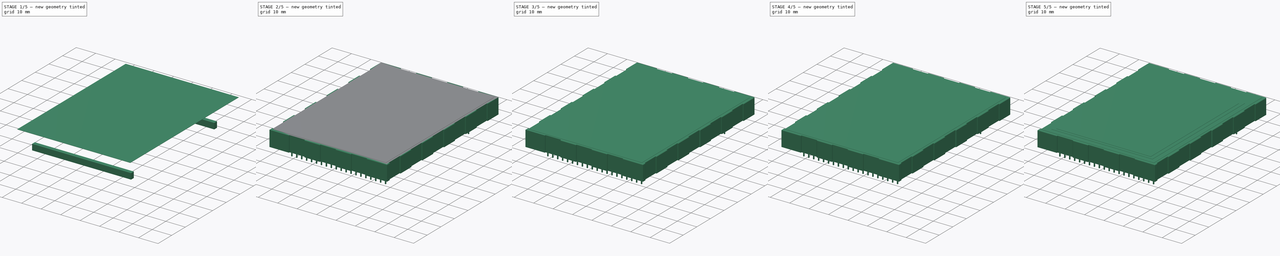
[diagram: build sequence overview — one tinted view per stage of 5, left to right]
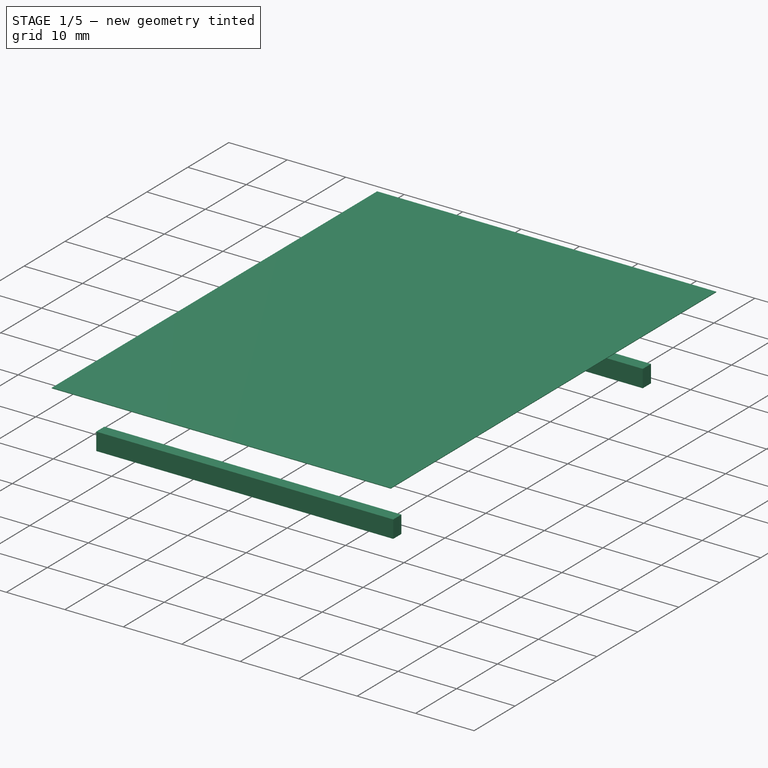
[diagram: stage 1 of 5 — iso view after this stage's code; geometry added in this stage tinted green]
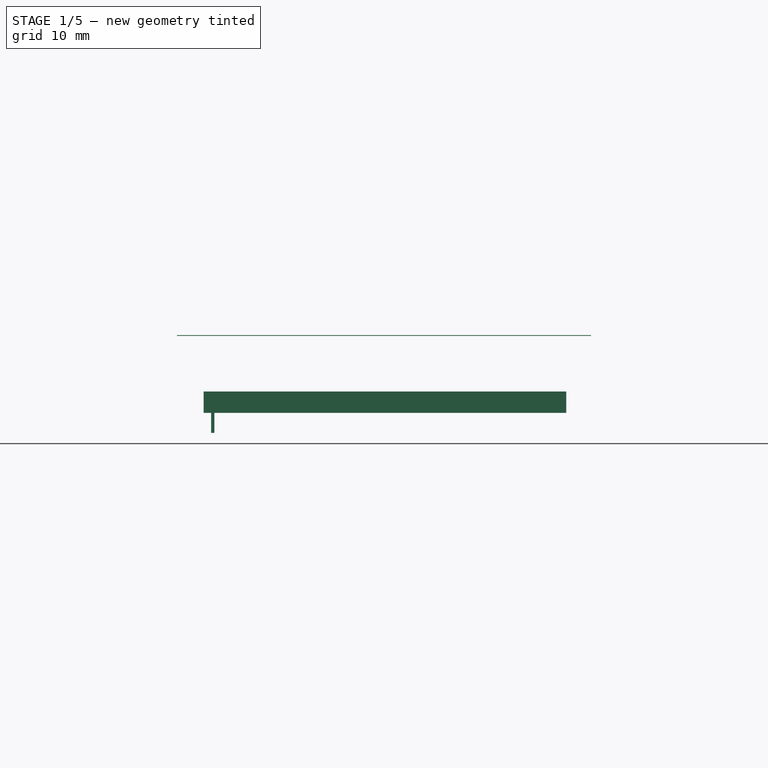
[diagram: stage 1 of 5 — front view after this stage's code; geometry added in this stage tinted green]
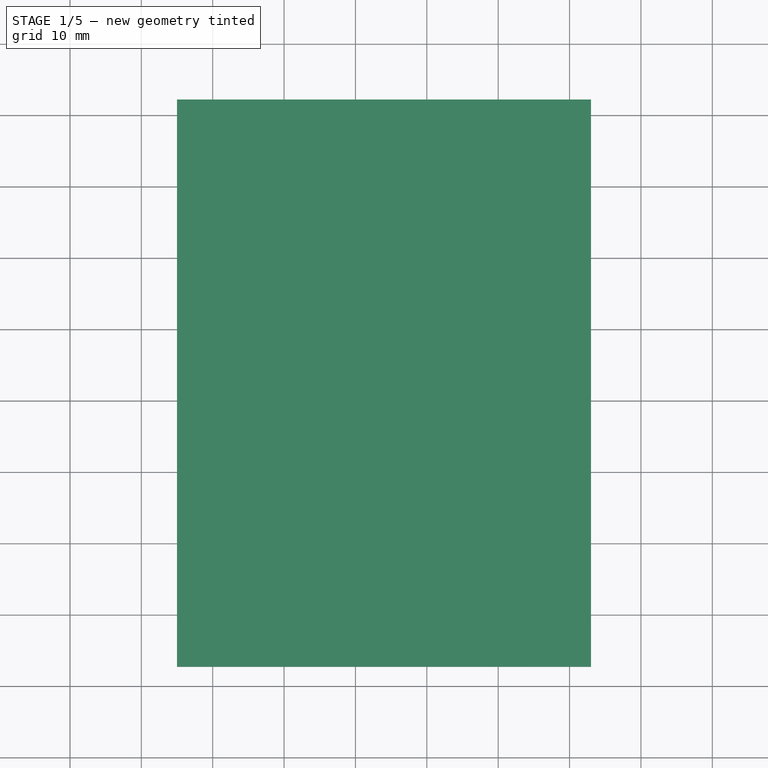
[diagram: stage 1 of 5 — top view after this stage's code; geometry added in this stage tinted green]
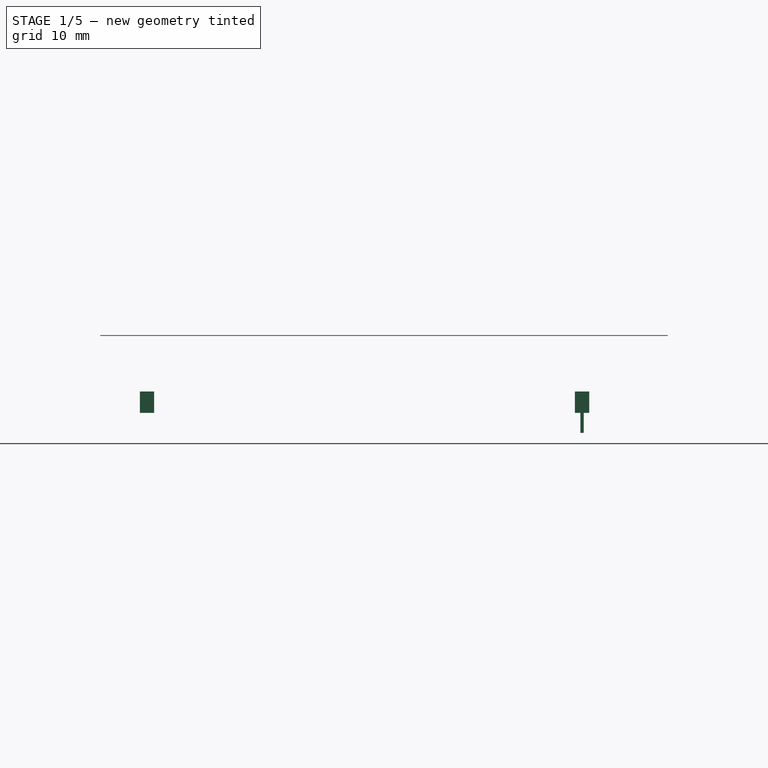
[diagram: stage 1 of 5 — right view after this stage's code; geometry added in this stage tinted green]
FCSTD DOCUMENT  (FreeCAD 0.17R11223 (Git))
Label: EA_eDIPTFT32_3
License: All rights reserved
LicenseURL: http://en.wikipedia.org/wiki/All_rights_reserved
objects: Part::Fillet×8, Part::Box×5, Part::FeaturePython×2, Part::MultiFuse×2, Sketcher::SketchObject×1, PartDesign::Pad×1, PartDesign::Body×1, Part::Cylinder×1
note: 22 computed .brp shape members not serialized (recipe doc carries the construction recipe); baked Part::Feature solids carry a one-line shape summary decoded from their .brp

FEATURE [PartDesign::Body] Body
  Group = -> [Sketch,Pad]
  Origin = -> BodyOrigin
  Placement = pos=(0,0,2.8) rot=(0,0,1;4.71239rad)
  Tip = -> Pad
FEATURE [Part::Box] Box  label="Kub"
  AttacherType = Attacher::AttachEngine3D
  Height = 3
  Length = 50.8
  Placement = pos=(-1.27,-1,0) rot=(0,0,1;0rad)
  Width = 2
FEATURE [Part::Box] Box001  label="Pin"
  AttacherType = Attacher::AttachEngine3D
  Height = 4
  Length = 0.46
  Placement = pos=(-0.23,-0.23,-2.8) rot=(0,0,1;0rad)
  Width = 0.46
FEATURE [Part::FeaturePython] Array001  label="Pinholder"  # Draft array (typed FeaturePython)
  Angle = 360
  ArrayType = 0
  Axis = (0,0,1)
  Base = -> Box
  Center = (0,0,0)
  Fuse = false
  IntervalAxis = (0,0,0)
  IntervalX = (1,0,0)
  IntervalY = (0,-60.96,0)
  IntervalZ = (0,0,0)
  NumberPolar = 1
  NumberX = 1
  NumberY = 2
  NumberZ = 1
FEATURE [Part::Box] Box004  label="DisplayBase"
  AttacherType = Attacher::AttachEngine3D
  Height = 0.1
  Length = 58
  Placement = pos=(-5,-67.5,10.8) rot=(0,0,1;0rad)
  Width = 79.5
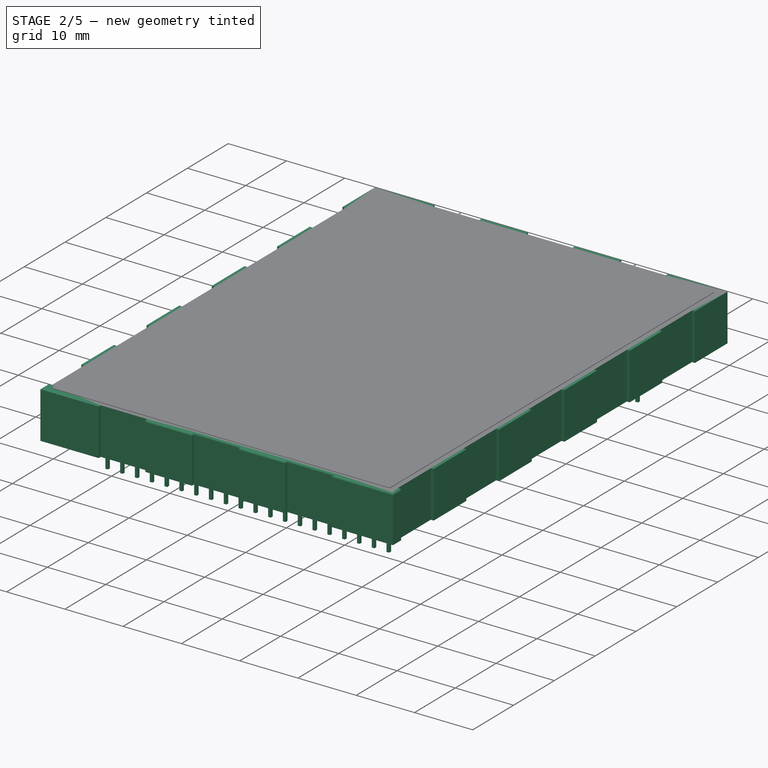
[diagram: stage 2 of 5 — iso view after this stage's code; geometry added in this stage tinted green]
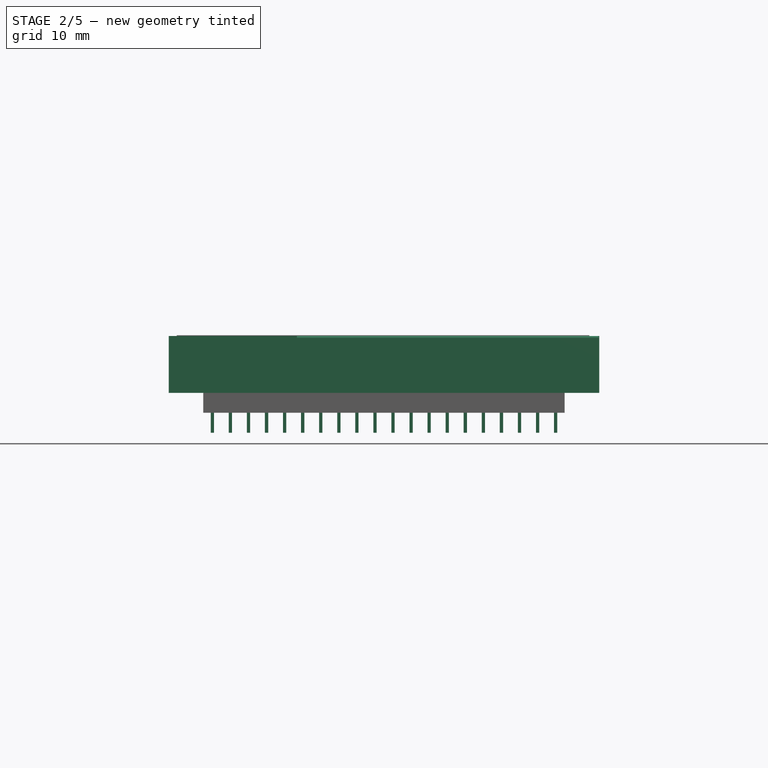
[diagram: stage 2 of 5 — front view after this stage's code; geometry added in this stage tinted green]
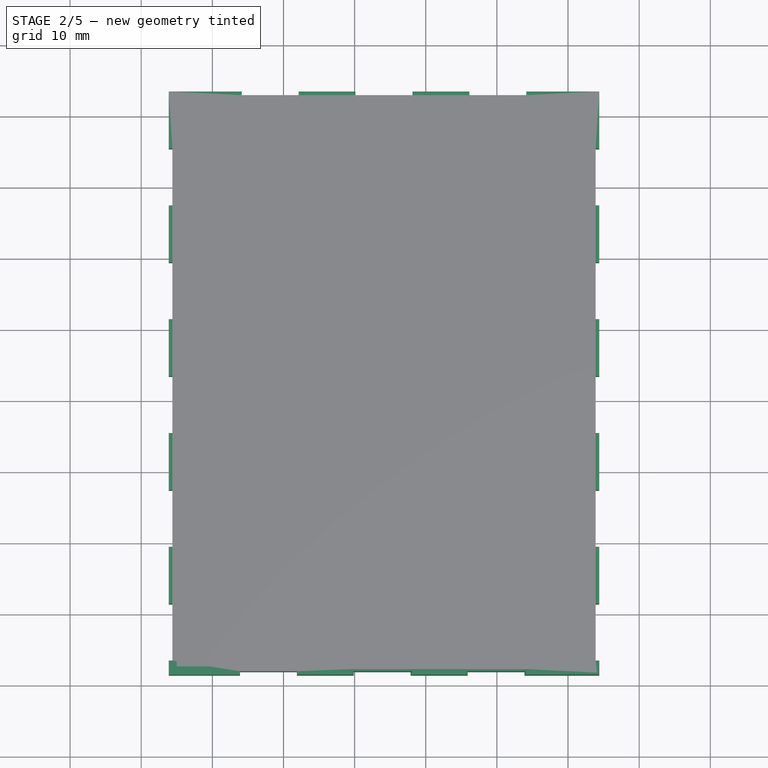
[diagram: stage 2 of 5 — top view after this stage's code; geometry added in this stage tinted green]
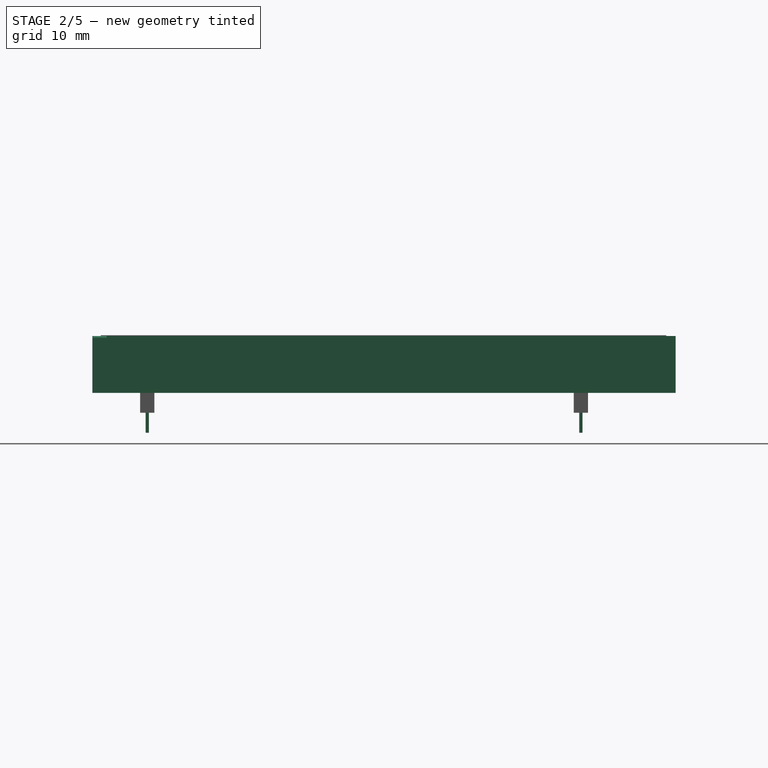
[diagram: stage 2 of 5 — right view after this stage's code; geometry added in this stage tinted green]
FEATURE [Sketcher::SketchObject] Sketch
  MapMode = 5
  Support = -> [XY_Plane]
  sketch-geometry (68):
    g0: LineSegment StartX=-13.32 StartY=54.38 StartZ=0 EndX=-5.32 EndY=54.38 EndZ=0
    g1: LineSegment StartX=-5.32 StartY=54.38 StartZ=0 EndX=-5.32 EndY=53.88 EndZ=0
    g2: LineSegment StartX=-5.32 StartY=53.88 StartZ=0 EndX=2.68 EndY=53.88 EndZ=0
    g3: LineSegment StartX=2.68 StartY=53.88 StartZ=0 EndX=2.68 EndY=54.38 EndZ=0
    g4: LineSegment StartX=2.68 StartY=54.38 StartZ=0 EndX=10.68 EndY=54.38 EndZ=0
    g5: LineSegment StartX=10.68 StartY=54.38 StartZ=0 EndX=10.68 EndY=53.88 EndZ=0
    g6: LineSegment StartX=10.68 StartY=53.88 StartZ=0 EndX=18.68 EndY=53.88 EndZ=0
    g7: LineSegment StartX=18.68 StartY=53.88 StartZ=0 EndX=18.68 EndY=54.38 EndZ=0
    g8: LineSegment StartX=18.68 StartY=54.38 StartZ=0 EndX=26.68 EndY=54.38 EndZ=0
    g9: LineSegment StartX=26.68 StartY=54.38 StartZ=0 EndX=26.68 EndY=53.88 EndZ=0
    g10: LineSegment StartX=26.68 StartY=53.88 StartZ=0 EndX=34.68 EndY=53.88 EndZ=0
    g11: LineSegment StartX=34.68 StartY=53.88 StartZ=0 EndX=34.68 EndY=54.38 EndZ=0
    g12: LineSegment StartX=34.68 StartY=54.38 StartZ=0 EndX=42.68 EndY=54.38 EndZ=0
    g13: LineSegment StartX=42.68 StartY=54.38 StartZ=0 EndX=42.68 EndY=53.88 EndZ=0
    g14: LineSegment StartX=42.68 StartY=53.88 StartZ=0 EndX=50.68 EndY=53.88 EndZ=0
    g15: LineSegment StartX=50.68 StartY=53.88 StartZ=0 EndX=50.68 EndY=54.38 EndZ=0
    g16: LineSegment StartX=50.68 StartY=54.38 StartZ=0 EndX=58.68 EndY=54.38 EndZ=0
    g17: LineSegment StartX=58.68 StartY=54.38 StartZ=0 EndX=58.68 EndY=53.88 EndZ=0
    g18: LineSegment StartX=58.68 StartY=53.88 StartZ=0 EndX=66.68 EndY=53.88 EndZ=0
    g19: LineSegment StartX=66.68 StartY=53.88 StartZ=0 EndX=66.68 EndY=54.38 EndZ=0
    g20: LineSegment StartX=66.68 StartY=54.38 StartZ=0 EndX=68.68 EndY=54.38 EndZ=0
    g21: LineSegment StartX=68.68 StartY=54.38 StartZ=0 EndX=68.68 EndY=43.88 EndZ=0
    g22: LineSegment StartX=68.68 StartY=43.88 StartZ=0 EndX=68.18 EndY=43.88 EndZ=0
    g23: LineSegment StartX=68.18 StartY=43.88 StartZ=0 EndX=68.18 EndY=35.88 EndZ=0
    g24: LineSegment StartX=68.18 StartY=35.88 StartZ=0 EndX=68.68 EndY=35.88 EndZ=0
    g25: LineSegment StartX=68.68 StartY=35.88 StartZ=0 EndX=68.68 EndY=27.88 EndZ=0
    g26: LineSegment StartX=68.68 StartY=27.88 StartZ=0 EndX=68.18 EndY=27.88 EndZ=0
    g27: LineSegment StartX=68.18 StartY=27.88 StartZ=0 EndX=68.18 EndY=19.88 EndZ=0
    g28: LineSegment StartX=68.18 StartY=19.88 StartZ=0 EndX=68.68 EndY=19.88 EndZ=0
    g29: LineSegment StartX=68.68 StartY=-6.12 StartZ=0 EndX=66.68 EndY=-6.12 EndZ=0
    g30: LineSegment StartX=66.68 StartY=-6.12 StartZ=0 EndX=66.68 EndY=-5.62 EndZ=0
    g31: LineSegment StartX=66.68 StartY=-5.62 StartZ=0 EndX=58.68 EndY=-5.62 EndZ=0
    g32: LineSegment StartX=58.68 StartY=-5.62 StartZ=0 EndX=58.68 EndY=-6.12 EndZ=0
    g33: LineSegment StartX=58.68 StartY=-6.12 StartZ=0 EndX=50.68 EndY=-6.12 EndZ=0
    g34: LineSegment StartX=50.68 StartY=-6.12 StartZ=0 EndX=50.68 EndY=-5.62 EndZ=0
    g35: LineSegment StartX=50.68 StartY=-5.62 StartZ=0 EndX=42.68 EndY=-5.62 EndZ=0
    g36: LineSegment StartX=42.68 StartY=-5.62 StartZ=0 EndX=42.68 EndY=-6.12 EndZ=0
    g37: LineSegment StartX=42.68 StartY=-6.12 StartZ=0 EndX=34.68 EndY=-6.12 EndZ=0
    g38: LineSegment StartX=34.68 StartY=-6.12 StartZ=0 EndX=34.68 EndY=-5.62 EndZ=0
    g39: LineSegment StartX=34.68 StartY=-5.62 StartZ=0 EndX=26.68 EndY=-5.62 EndZ=0
    g40: LineSegment StartX=26.68 StartY=-5.62 StartZ=0 EndX=26.68 EndY=-6.12 EndZ=0
    g41: LineSegment StartX=26.68 StartY=-6.12 StartZ=0 EndX=18.68 EndY=-6.12 EndZ=0
    g42: LineSegment StartX=18.68 StartY=-6.12 StartZ=0 EndX=18.68 EndY=-5.62 EndZ=0
    g43: LineSegment StartX=18.68 StartY=-5.62 StartZ=0 EndX=10.68 EndY=-5.62 EndZ=0
    g44: LineSegment StartX=10.68 StartY=-5.62 StartZ=0 EndX=10.68 EndY=-6.12 EndZ=0
    g45: LineSegment StartX=10.68 StartY=-6.12 StartZ=0 EndX=2.68 EndY=-6.12 EndZ=0
    g46: LineSegment StartX=2.68 StartY=-6.12 StartZ=0 EndX=2.68 EndY=-5.62 EndZ=0
    g47: LineSegment StartX=2.68 StartY=-5.62 StartZ=0 EndX=-5.32 EndY=-5.62 EndZ=0
    g48: LineSegment StartX=-5.32 StartY=-5.62 StartZ=0 EndX=-5.32 EndY=-6.12 EndZ=0
    g49: LineSegment StartX=-5.32 StartY=-6.12 StartZ=0 EndX=-13.32 EndY=-6.12 EndZ=0
    g50: LineSegment StartX=-13.32 StartY=-6.12 StartZ=0 EndX=-13.32 EndY=4.13 EndZ=0
    g51: LineSegment StartX=-13.32 StartY=4.13 StartZ=0 EndX=-12.82 EndY=4.13 EndZ=0
    g52: LineSegment StartX=-12.82 StartY=4.13 StartZ=0 EndX=-12.82 EndY=12.13 EndZ=0
    g53: LineSegment StartX=-12.82 StartY=12.13 StartZ=0 EndX=-13.32 EndY=12.13 EndZ=0
    g54: LineSegment StartX=-13.32 StartY=12.13 StartZ=0 EndX=-13.32 EndY=20.13 EndZ=0
    g55: LineSegment StartX=-13.32 StartY=20.13 StartZ=0 EndX=-12.82 EndY=20.13 EndZ=0
    g56: LineSegment StartX=-12.82 StartY=20.13 StartZ=0 EndX=-12.82 EndY=28.13 EndZ=0
    g57: LineSegment StartX=-12.82 StartY=28.13 StartZ=0 EndX=-13.32 EndY=28.13 EndZ=0
    g58: LineSegment StartX=-13.32 StartY=28.13 StartZ=0 EndX=-13.32 EndY=36.13 EndZ=0
    g59: LineSegment StartX=-13.32 StartY=36.13 StartZ=0 EndX=-12.82 EndY=36.13 EndZ=0
    g60: LineSegment StartX=-12.82 StartY=36.13 StartZ=0 EndX=-12.82 EndY=44.13 EndZ=0
    g61: LineSegment StartX=-12.82 StartY=44.13 StartZ=0 EndX=-13.32 EndY=44.13 EndZ=0
    g62: LineSegment StartX=-13.32 StartY=44.13 StartZ=0 EndX=-13.32 EndY=54.38 EndZ=0
    g63: LineSegment StartX=68.68 StartY=19.88 StartZ=0 EndX=68.68 EndY=11.88 EndZ=0
    g64: LineSegment StartX=68.68 StartY=11.88 StartZ=0 EndX=68.18 EndY=11.88 EndZ=0
    g65: LineSegment StartX=68.18 StartY=11.88 StartZ=0 EndX=68.18 EndY=3.88 EndZ=0
    g66: LineSegment StartX=68.18 StartY=3.88 StartZ=0 EndX=68.68 EndY=3.88 EndZ=0
    g67: LineSegment StartX=68.68 StartY=3.88 StartZ=0 EndX=68.68 EndY=-6.12 EndZ=0
  constraints (204):
    c: Horizontal(g0)
    c: Coincident(g0,g1)
    c: Vertical(g1)
    c: Coincident(g1,g2)
    c: Horizontal(g2)
    c: Coincident(g2,g3)
    c: Vertical(g3)
    c: Coincident(g3,g4)
    c: Horizontal(g4)
    c: Coincident(g4,g5)
    c: Vertical(g5)
    c: Coincident(g5,g6)
    c: Horizontal(g6)
    c: Coincident(g6,g7)
    c: Vertical(g7)
    c: Coincident(g7,g8)
    c: Horizontal(g8)
    c: Coincident(g8,g9)
    c: Vertical(g9)
    c: Coincident(g9,g10)
    c: Horizontal(g10)
    c: Coincident(g10,g11)
    c: Coincident(g11,g12)
    c: Horizontal(g12)
    c: Coincident(g12,g13)
    c: Vertical(g13)
    c: Coincident(g13,g14)
    c: Horizontal(g14)
    c: Coincident(g14,g15)
    c: Vertical(g15)
    c: Coincident(g15,g16)
    c: Horizontal(g16)
    c: Coincident(g16,g17)
    c: Vertical(g17)
    c: Coincident(g17,g18)
    c: Horizontal(g18)
    c: Coincident(g18,g19)
    c: Vertical(g19)
    c: Coincident(g19,g20)
    c: Horizontal(g20)
    c: Coincident(g20,g21)
    c: Vertical(g21)
    c: Coincident(g21,g22)
    c: Coincident(g22,g23)
    c: Vertical(g23)
    c: Coincident(g23,g24)
    c: Coincident(g24,g25)
    c: Vertical(g25)
    c: Coincident(g25,g26)
    c: Horizontal(g26)
    c: Coincident(g26,g27)
    c: Coincident(g27,g28)
    c: Coincident(g29,g30)
    c: Coincident(g30,g31)
    c: Horizontal(g31)
    c: Coincident(g31,g32)
    c: Vertical(g32)
    c: Coincident(g32,g33)
    c: Horizontal(g33)
    c: Coincident(g33,g34)
    c: Coincident(g34,g35)
    c: Coincident(g35,g36)
    c: Coincident(g36,g37)
    c: Horizontal(g37)
    c: Coincident(g37,g38)
    c: Coincident(g38,g39)
    c: Horizontal(g39)
    c: Coincident(g39,g40)
    c: Coincident(g40,g41)
    c: Horizontal(g41)
    c: Coincident(g41,g42)
    c: Coincident(g42,g43)
    c: Horizontal(g43)
    c: Coincident(g43,g44)
    c: Coincident(g44,g45)
    c: Horizontal(g45)
    c: Coincident(g45,g46)
    c: Coincident(g46,g47)
    c: Coincident(g47,g48)
    c: Coincident(g48,g49)
    c: Coincident(g49,g50)
    c: Vertical(g50)
    c: Coincident(g50,g51)
    c: Coincident(g51,g52)
    c: Coincident(g52,g53)
    c: Coincident(g53,g54)
    c: Vertical(g54)
    c: Coincident(g54,g55)
    c: Horizontal(g55)
    c: Coincident(g55,g56)
    c: Coincident(g56,g57)
    c: Coincident(g57,g58)
    c: Coincident(g58,g59)
    c: Horizontal(g59)
    c: Coincident(g59,g60)
    c: Vertical(g60)
    c: Coincident(g60,g61)
    c: Horizontal(g61)
    c: Coincident(g61,g62)
    c: Coincident(g62,g0)
    c: DistanceX(g0,g0) = 8
    c: DistanceX(g1,g2) = 8
    c: DistanceX(g3,g4) = 8
    c: DistanceX(g17,g18) = 8
    c: DistanceX(g15,g16) = 8
    c: DistanceX(g13,g14) = 8
    c: DistanceX(g11,g12) = 8
    c: DistanceX(g0,g20) = 82
    c: DistanceX(g9,g10) = 8
    c: DistanceX(g11,g10) = 0
    c: DistanceX(g7,g8) = 8
    c: DistanceX(g5,g6) = 8
    c: DistanceY(g1,g0) = 0.5
    c: DistanceY(g2,g3) = 0.5
    c: DistanceY(g5,g4) = 0.5
    c: DistanceY(g6,g7) = 0.5
    c: DistanceY(g9,g8) = 0.5
    c: DistanceY(g10,g11) = 0.5
    c: DistanceY(g13,g12) = 0.5
    c: DistanceY(g14,g15) = 0.5
    c: DistanceY(g17,g16) = 0.5
    c: DistanceY(g18,g19) = 0.5
    c: DistanceX(g0,g61) = 0
    c: DistanceY(g49,g0) = 60.5
    c: DistanceX(g61,g60) = 0.5
    c: DistanceX(g58,g59) = 0.5
    c: DistanceY(g51,g50) = 0
    c: DistanceX(g51,g52) = 0
    c: DistanceY(g52,g53) = 0
    c: DistanceX(g55,g56) = 0
    c: DistanceY(g57,g56) = 0
    c: DistanceX(g57,g56) = 0.5
    c: DistanceY(g59,g60) = 8
    c: DistanceX(g58,g57) = 0
    c: DistanceY(g57,g58) = 8
    c: DistanceY(g51,g52) = 8
    c: DistanceY(g53,g54) = 8
    c: DistanceX(g54,g55) = 0.5
    c: DistanceY(g55,g56) = 8
    c: DistanceY(g61,g0) = 10.25
    c: DistanceX(g53,g52) = 0.5
    c: DistanceY(g48,g49) = 0
    c: DistanceY(g48,g47) = 0.5
    c: DistanceX(g48,g47) = 0
    c: DistanceX(g49,g48) = 8
    c: DistanceY(g46,g47) = 0
    c: DistanceX(g47,g46) = 8
    c: DistanceY(g45,g46) = 0.5
    c: DistanceX(g46,g45) = 0
    c: DistanceX(g45,g44) = 8
    c: DistanceY(g44,g43) = 0.5
    c: DistanceX(g44,g43) = 0
    c: DistanceX(g43,g42) = 8
    c: DistanceY(g41,g42) = 0.5
    c: DistanceX(g42,g41) = 0
    c: DistanceY(g40,g39) = 0.5
    c: DistanceX(g40,g39) = 0
    c: DistanceY(g37,g38) = 0.5
    c: DistanceX(g38,g37) = 0
    c: DistanceX(g41,g40) = 8
    c: DistanceX(g39,g38) = 8
    c: DistanceY(g36,g35) = 0.5
    c: DistanceX(g35,g36) = 0
    c: DistanceX(g37,g36) = 8
    c: DistanceX(g33,g34) = 0
    c: DistanceY(g33,g34) = 0.5
    c: DistanceY(g35,g34) = 0
    c: DistanceX(g33,g32) = 8
    c: DistanceX(g36,g33) = 8
    c: DistanceY(g32,g31) = 0.5
    c: DistanceX(g31,g31) = 8
    c: DistanceX(g30,g29) = 0
    c: DistanceY(g29,g30) = 0.5
    c: DistanceY(g29,g29) = 0
    c: DistanceX(g49,g29) = 82
    c: DistanceY(g21,g20) = 10.5
    c: DistanceX(g22,g21) = 0.5
    c: DistanceY(g22,g21) = 0
    c: DistanceX(g23,g24) = 0.5
    c: DistanceY(g24,g23) = 0
    c: DistanceY(g23,g22) = 8
    c: DistanceY(g25,g24) = 8
    c: DistanceX(g27,g28) = 0.5
    c: DistanceX(g26,g27) = 0
    c: DistanceX(g26,g25) = 0.5
    c: DistanceY(g27,g26) = 8
    c: DistanceY(g28,g27) = 0
    c: Coincident(g28,g63)
    c: Vertical(g63)
    c: Coincident(g63,g64)
    c: Horizontal(g64)
    c: Coincident(g64,g65)
    c: Vertical(g65)
    c: Coincident(g65,g66)
    c: Horizontal(g66)
    c: DistanceX(g64,g63) = 0.5
    c: DistanceY(g63,g28) = 8
    c: DistanceX(g50,g51) = 0.5
    c: DistanceX(g65,g66) = 0.5
    c: DistanceY(g65,g64) = 8
    c: Coincident(g67,g66)
    c: Coincident(g67,g29)
    c: DistanceX(g0,g-1) = 13.32
    c: DistanceY(g49,g-1) = 6.12
FEATURE [PartDesign::Pad] Pad
  Length = 8
  Length2 = 100
  Profile = -> Sketch
  Type = 0
FEATURE [Part::FeaturePython] Array  label="Pins"  # Draft array (typed FeaturePython)
  Angle = 360
  ArrayType = 0
  Axis = (0,0,1)
  Base = -> Box001
  Center = (0,0,0)
  Fuse = false
  IntervalAxis = (0,0,0)
  IntervalX = (2.54,0,0)
  IntervalY = (0,-60.96,0)
  IntervalZ = (0,0,0)
  NumberPolar = 1
  NumberX = 20
  NumberY = 2
  NumberZ = 1
FEATURE [Part::MultiFuse] Fusion
  Shapes = -> [Body,Array001,Array]
FEATURE [Part::Fillet] Fillet
  Base = -> Fusion
  Edges = 10 edges r=0.3: [Edge102,Edge103,Edge104,Edge105,Edge106,Edge107,Edge108,Edge109,Edge110,Edge111]
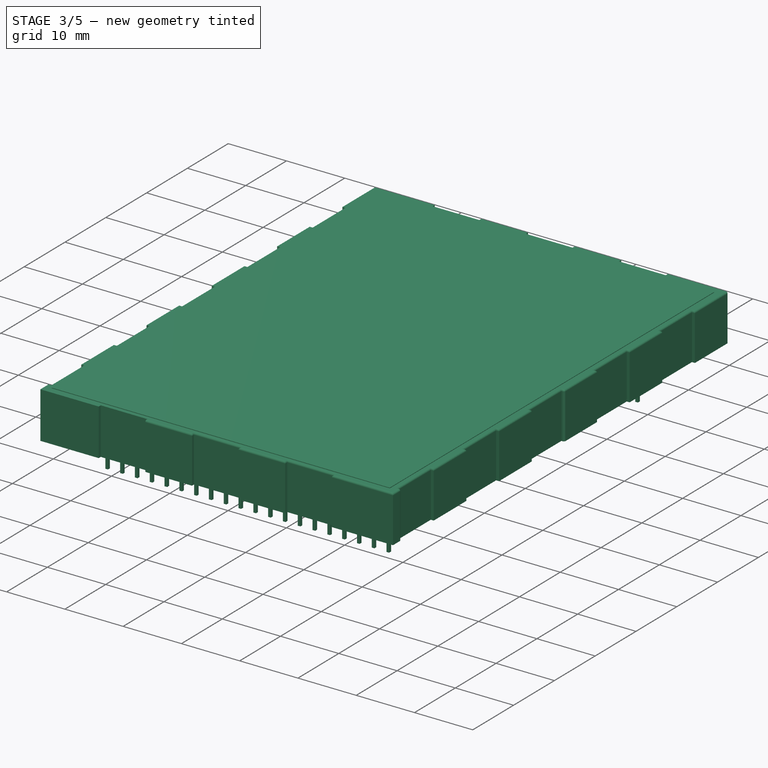
[diagram: stage 3 of 5 — iso view after this stage's code; geometry added in this stage tinted green]
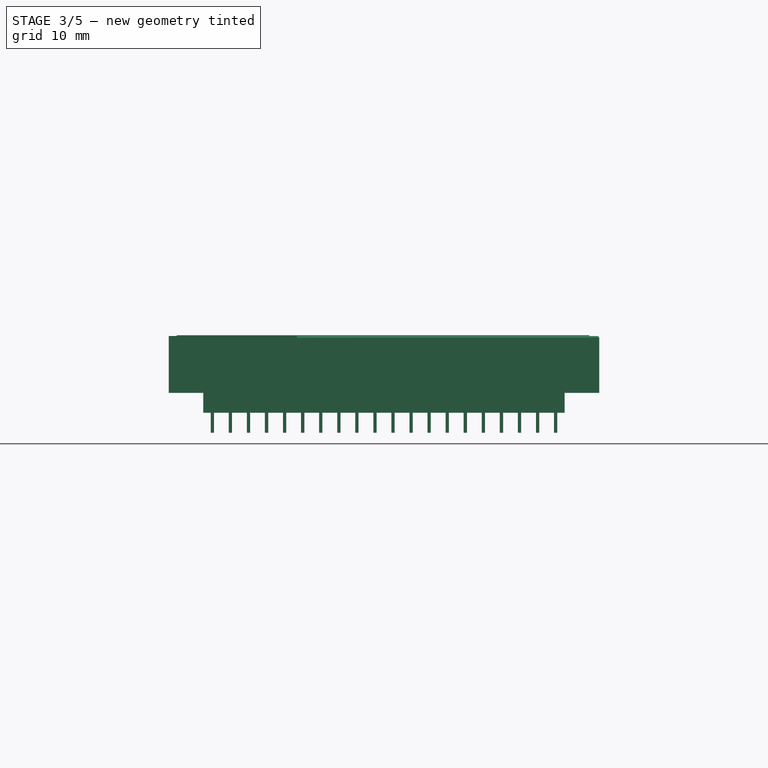
[diagram: stage 3 of 5 — front view after this stage's code; geometry added in this stage tinted green]
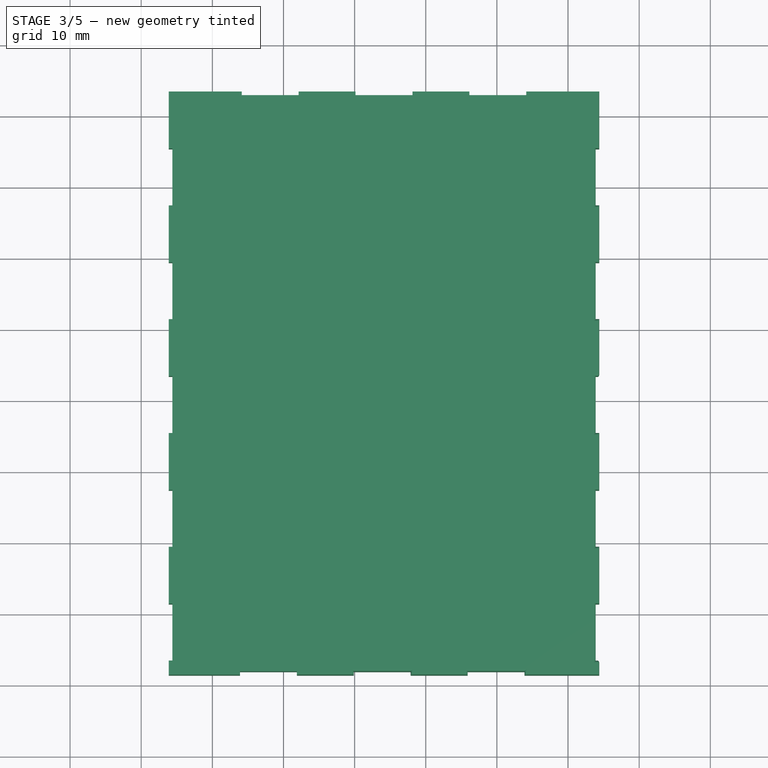
[diagram: stage 3 of 5 — top view after this stage's code; geometry added in this stage tinted green]
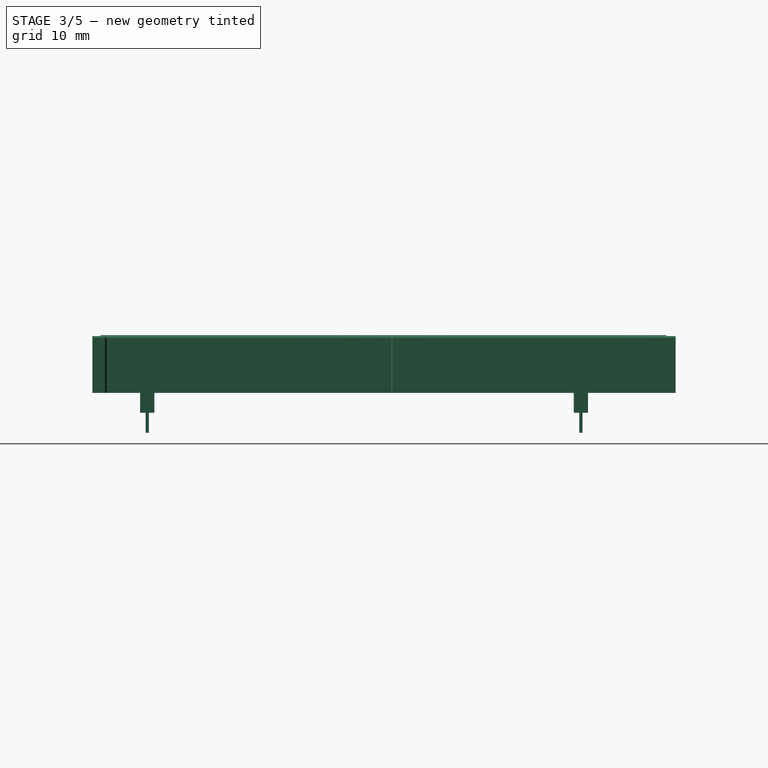
[diagram: stage 3 of 5 — right view after this stage's code; geometry added in this stage tinted green]
FEATURE [Part::Fillet] Fillet001
  Base = -> Fillet
  Edges = 6 edges r=0.3: [Edge1,Edge3,Edge5,Edge7,Edge9,Edge11]
FEATURE [Part::Fillet] Fillet002
  Base = -> Fillet001
  Edges = 9 edges r=0.3: [Edge26,Edge28,Edge30,Edge32,Edge34,Edge36,Edge38,Edge40,Edge42]
FEATURE [Part::Fillet] Fillet003
  Base = -> Fillet002
  Edges = 5 edges r=0.3: [Edge1,Edge3,Edge5,Edge7,Edge9]
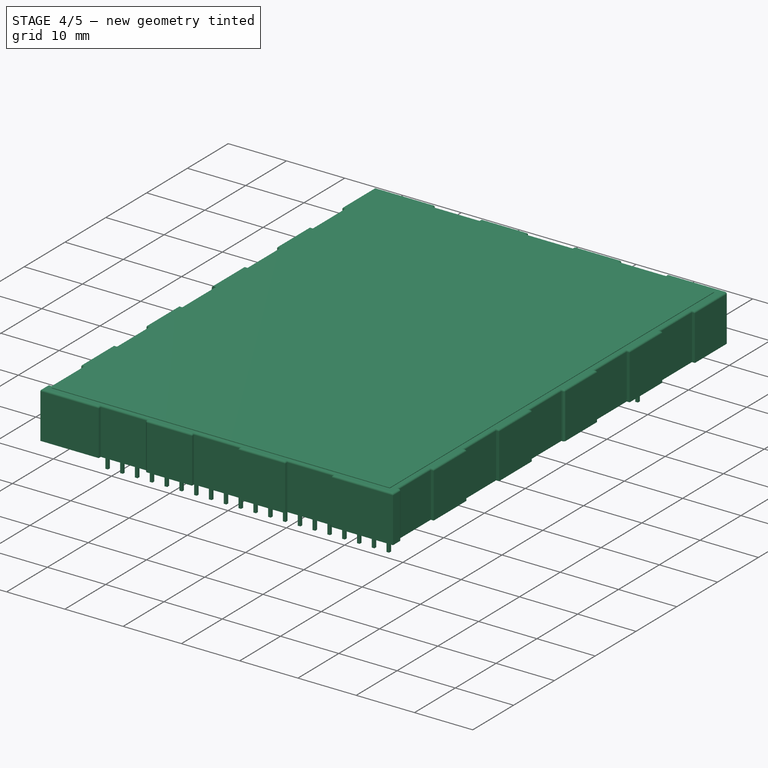
[diagram: stage 4 of 5 — iso view after this stage's code; geometry added in this stage tinted green]
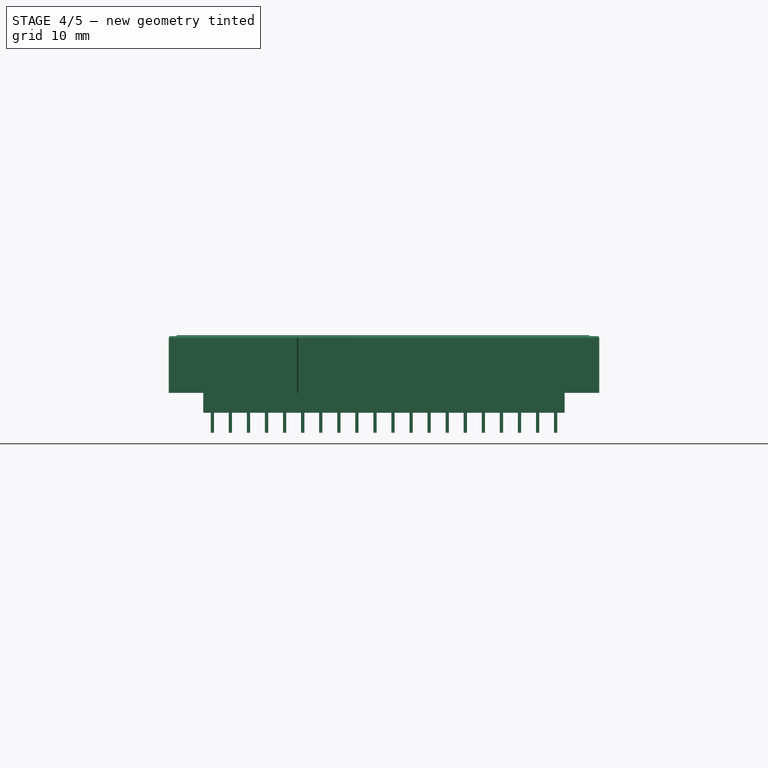
[diagram: stage 4 of 5 — front view after this stage's code; geometry added in this stage tinted green]
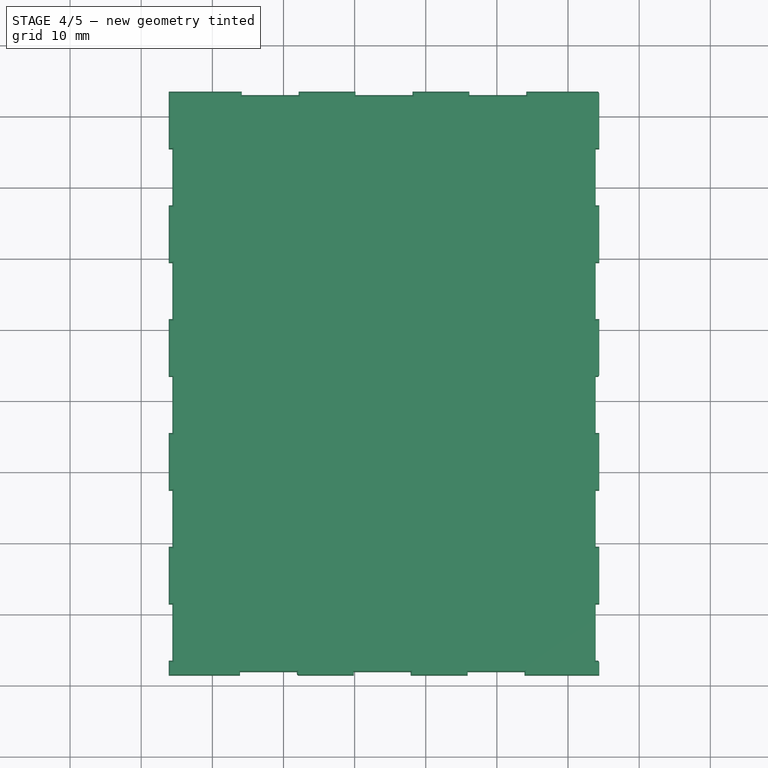
[diagram: stage 4 of 5 — top view after this stage's code; geometry added in this stage tinted green]
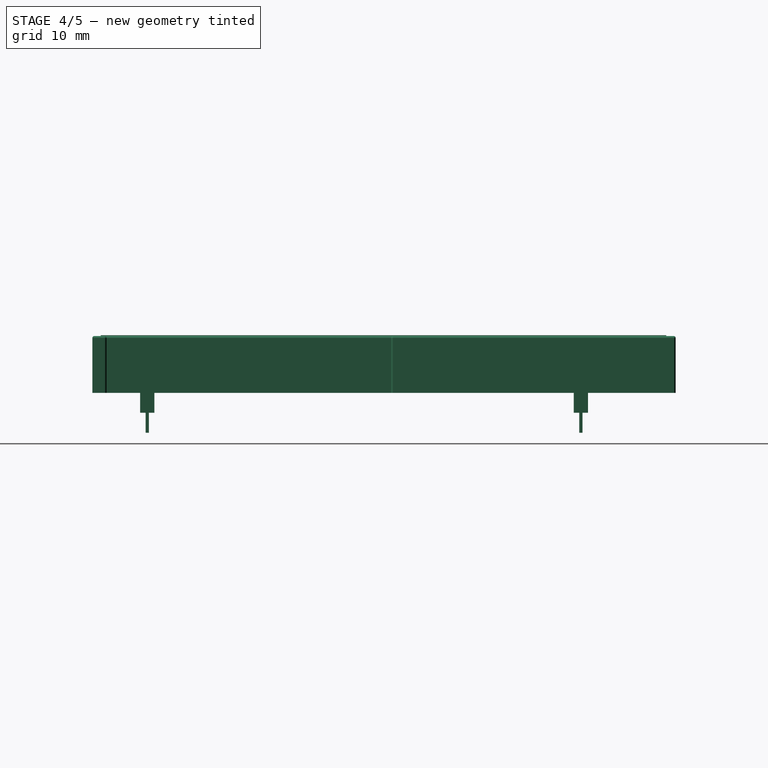
[diagram: stage 4 of 5 — right view after this stage's code; geometry added in this stage tinted green]
FEATURE [Part::Fillet] Fillet004
  Base = -> Fillet003
  Edges = 7 edges r=0.3: [Edge19,Edge21,Edge23,Edge25,Edge27,Edge29,Edge31]
FEATURE [Part::Fillet] Fillet005
  Base = -> Fillet004
  Edges = 9 edges r=0.3: [Edge18,Edge20,Edge22,Edge24,Edge26,Edge28,Edge30,Edge32,Edge34]
FEATURE [Part::Fillet] Fillet006
  Base = -> Fillet005
  Edges = 7 edges r=0.3: [Edge25,Edge27,Edge29,Edge31,Edge33,Edge35,Edge39]
FEATURE [Part::Fillet] Fillet007
  Base = -> Fillet006
  Edges = 14 edges r=0.3: [Edge9,Edge11,Edge13,Edge15,Edge17,Edge19,Edge21,Edge23,Edge25,Edge27,Edge29,Edge31,Edge33,Edge35]
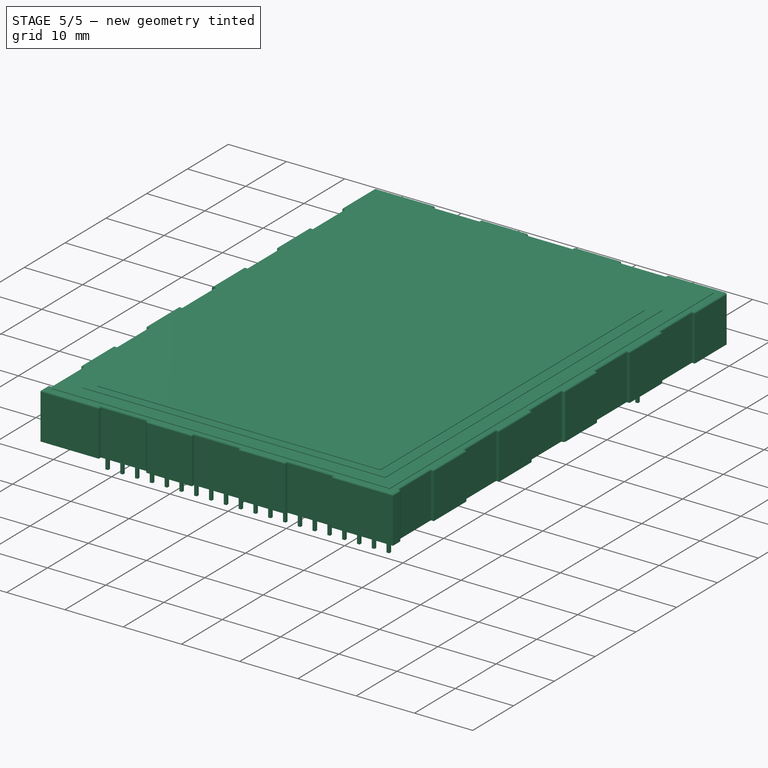
[diagram: stage 5 of 5 — iso view after this stage's code; geometry added in this stage tinted green]
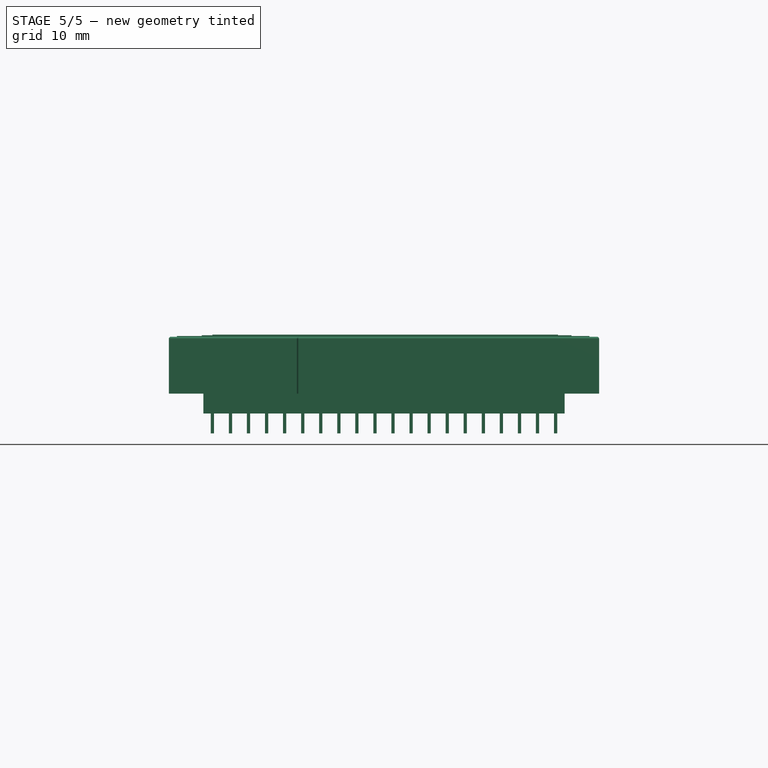
[diagram: stage 5 of 5 — front view after this stage's code; geometry added in this stage tinted green]
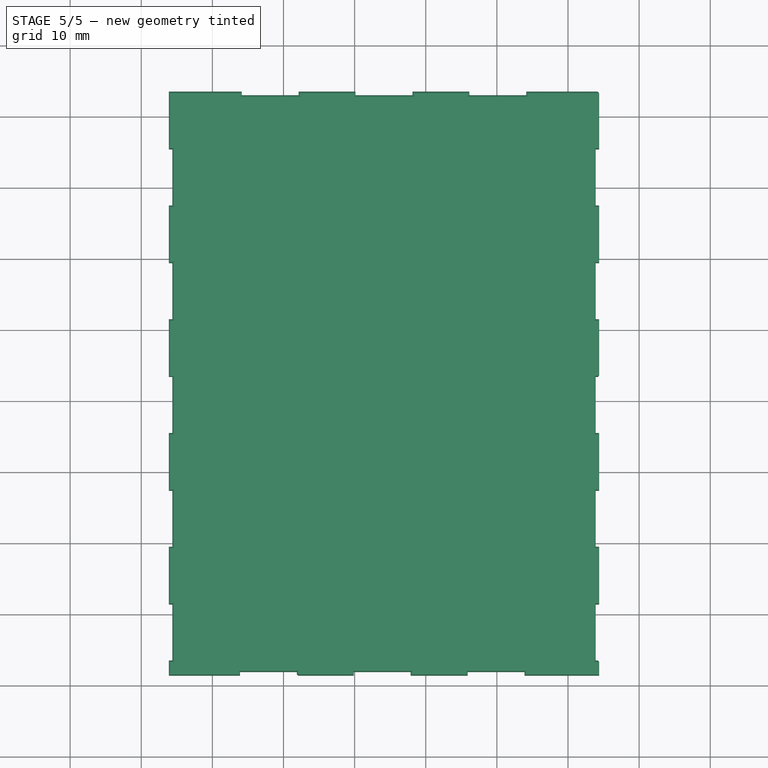
[diagram: stage 5 of 5 — top view after this stage's code; geometry added in this stage tinted green]
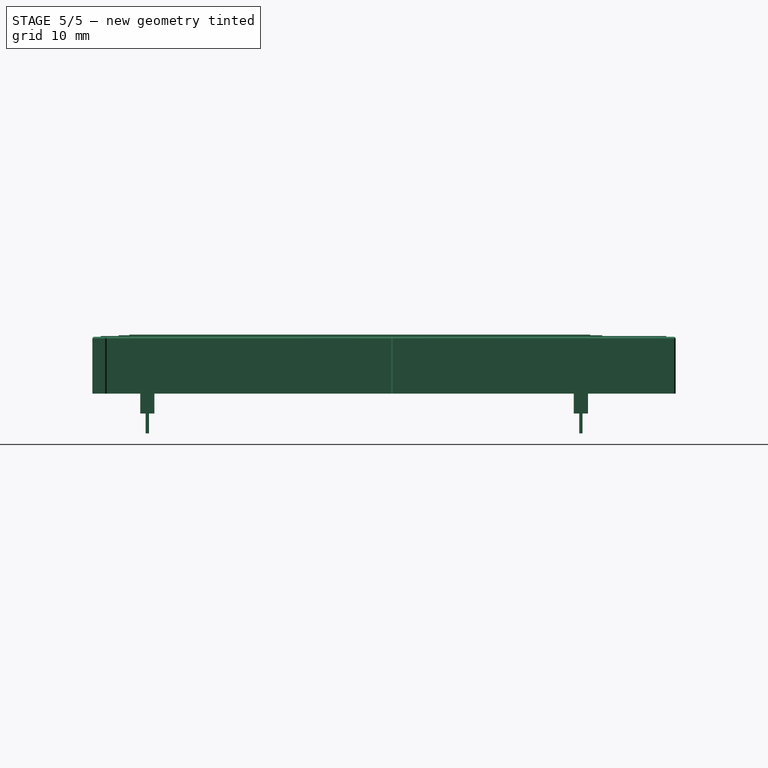
[diagram: stage 5 of 5 — right view after this stage's code; geometry added in this stage tinted green]
FEATURE [Part::Box] Box002  label="Displayframe"
  AttacherType = Attacher::AttachEngine3D
  Height = 0.1
  Length = 52
  Placement = pos=(-1.5,-65,10.9) rot=(0,0,1;0rad)
  Width = 68
FEATURE [Part::Cylinder] Cylinder
  Angle = 360
  AttacherType = Attacher::AttachEngine3D
  Height = 0.1
  Placement = pos=(-1.7,3.2,10.8) rot=(0,0,1;0rad)
  Radius = 0.3
FEATURE [Part::Box] Box003  label="Display"
  AttacherType = Attacher::AttachEngine3D
  Height = 0.1
  Length = 48.6
  Placement = pos=(0,-63.5,11) rot=(0,0,1;0rad)
  Width = 64.8
FEATURE [Part::MultiFuse] Fusion001  label="DisplayFrame"
  Shapes = -> [Box002,Cylinder]
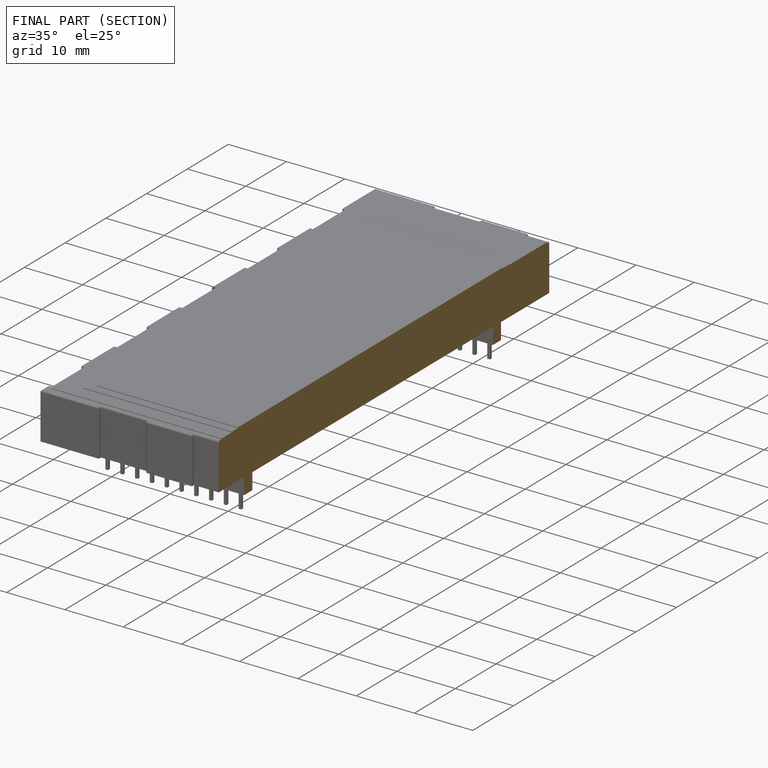
[diagram: finished part — half-section view (interior)]
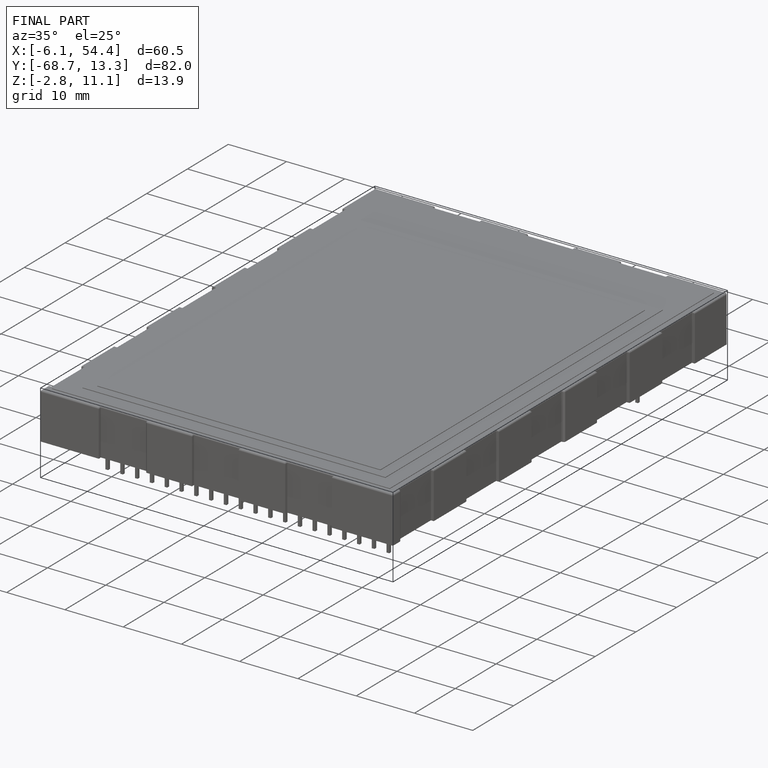
[diagram: finished part — iso view with bounding-box wireframe]
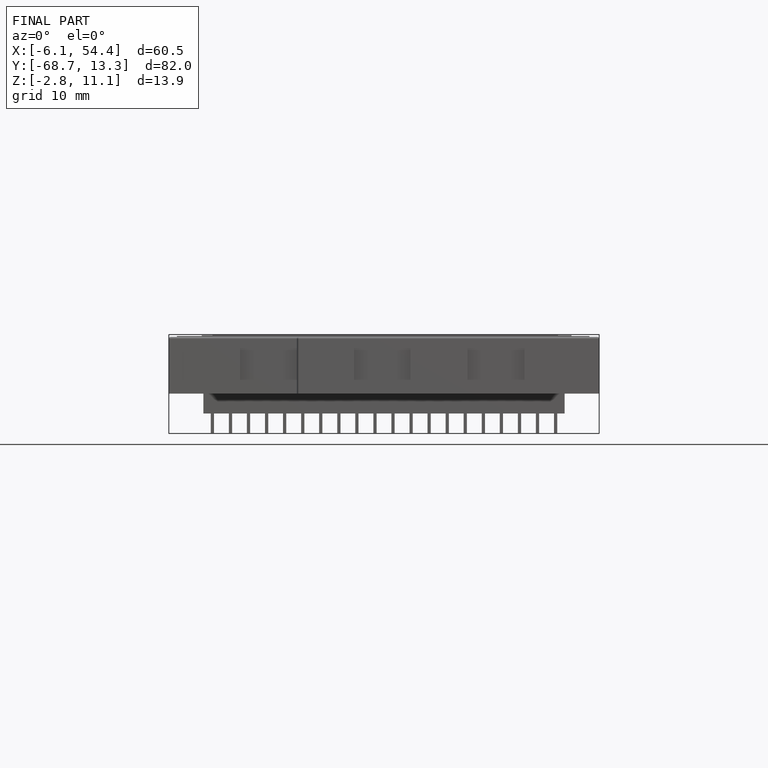
[diagram: finished part — front view with bounding-box wireframe]
